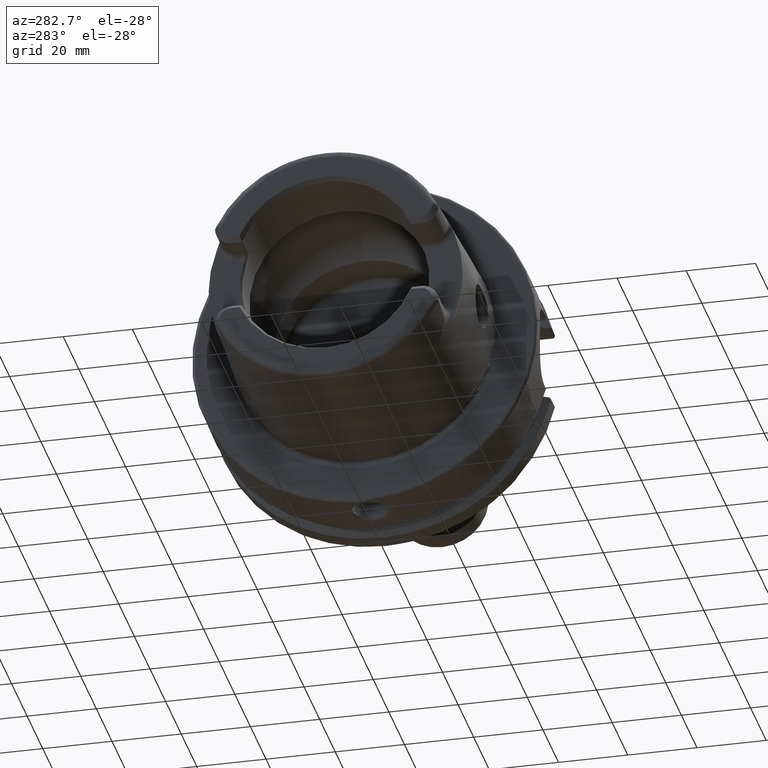
[diagram: clean part render]
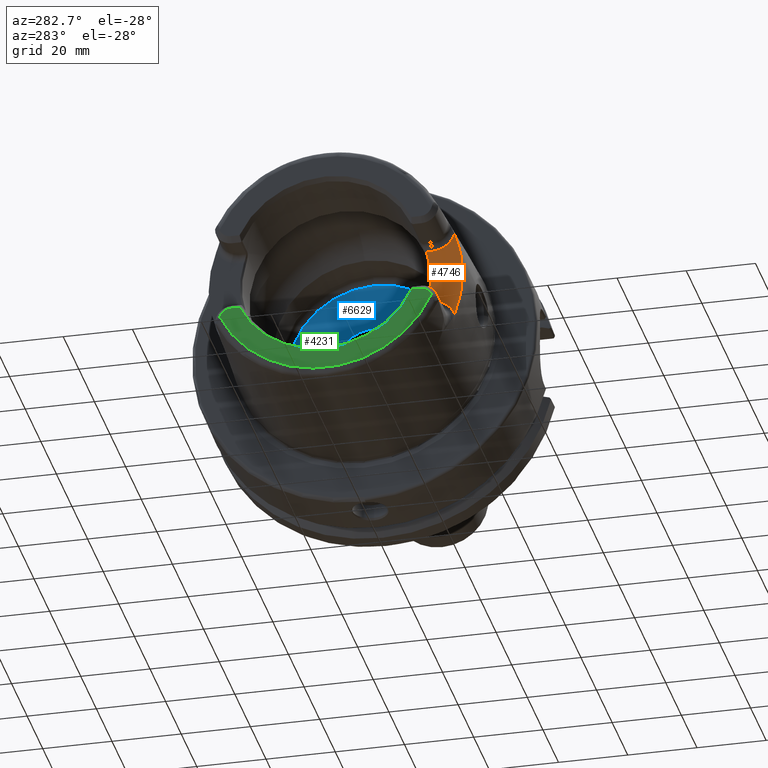
[diagram: same view with three faces highlighted in distinct colors, each labeled with its STEP entity id]
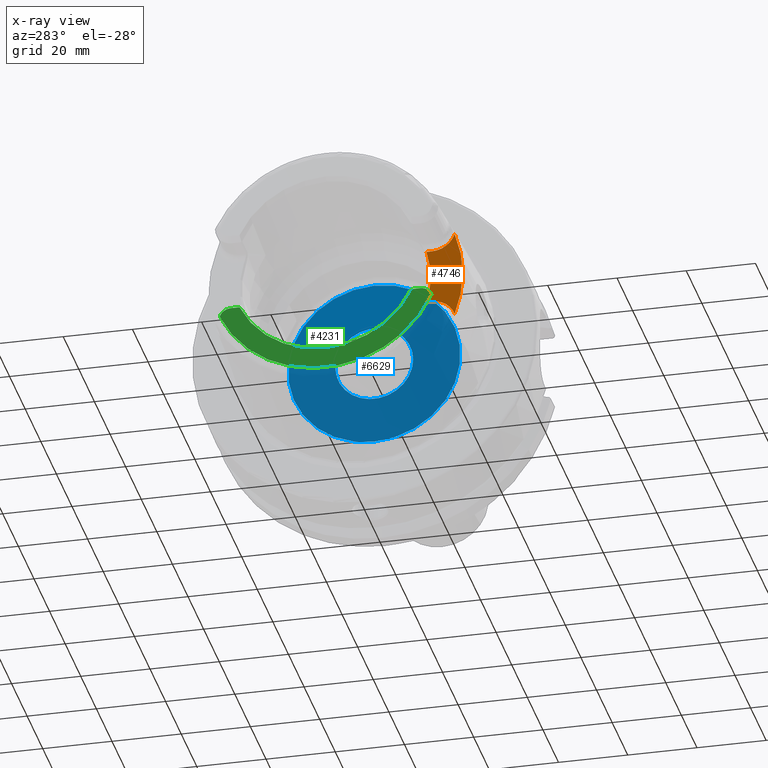
[diagram: x-ray of the same camera — body ghosted, the three highlighted faces saturated]
A machine part, auxiliary view with three faces highlighted in distinct colors.
The next image is the same camera in x-ray (body ghosted, the three faces saturated) — at least one of them is partly hidden behind the body in this view.
Their STEP definitions:

[orange] entity #4746 — the highlighted planar face has unit normal (1, 0, 0).
#610=CARTESIAN_POINT('',(-3.5E1,-3.391909039216E1,-1.278196417599E1));
#1115=CARTESIAN_POINT('',(-3.5E1,-3.002043058586E-13,-2.535749388244E-13));
#1116=DIRECTION('',(-1.E0,0.E0,0.E0));
#1117=DIRECTION('',(0.E0,-9.549810859508E-1,-2.966666908776E-1));
#1118=AXIS2_PLACEMENT_3D('',#1115,#1116,#1117);
#1120=CARTESIAN_POINT('',(-3.5E1,-2.737E1,1.489E1));
#1121=DIRECTION('',(-1.E0,0.E0,0.E0));
#1122=DIRECTION('',(0.E0,-3.385560565744E-10,-1.E0));
#1123=AXIS2_PLACEMENT_3D('',#1120,#1121,#1122);
#1125=CARTESIAN_POINT('',(-3.5E1,0.E0,0.E0));
#1126=DIRECTION('',(1.E0,0.E0,0.E0));
#1127=DIRECTION('',(0.E0,-9.357628524911E-1,3.526299532054E-1));
#1128=AXIS2_PLACEMENT_3D('',#1125,#1126,#1127);
#1130=CARTESIAN_POINT('',(-3.5E1,-2.737E1,-1.489E1));
#1131=DIRECTION('',(-1.E0,0.E0,0.E0));
#1132=DIRECTION('',(0.E0,-9.519026732788E-1,3.064005558166E-1));
#1133=AXIS2_PLACEMENT_3D('',#1130,#1131,#1132);
#1135=DIRECTION('',(1.158846828709E-9,9.999999999999E-1,-3.523374224471E-7));
#1136=VECTOR('',#1135,1.585510693194E0);
#1137=CARTESIAN_POINT('',(-3.5E1,-2.737000000155E1,-8.010000111748E0));
#1138=LINE('',#1137,#1136);
#1148=DIRECTION('',(1.409325401834E-9,9.999999999999E-1,5.349524788773E-7));
#1149=VECTOR('',#1148,1.585510756889E0);
#1150=CARTESIAN_POINT('',(-3.5E1,-2.737000000078E1,8.010000000082E0));
#1151=LINE('',#1150,#1149);
#3161=VERTEX_POINT('',#610);
#3162=CARTESIAN_POINT('',(-3.5E1,-3.391909039216E1,1.278196417598E1));
#3163=VERTEX_POINT('',#3162);
#3217=CARTESIAN_POINT('',(-3.5E1,-2.737000000233E1,8.01E0));
#3218=VERTEX_POINT('',#3217);
#3219=CARTESIAN_POINT('',(-3.5E1,-2.578448932067E1,-8.010000653695E0));
#3220=CARTESIAN_POINT('',(-3.5E1,-2.578448920776E1,8.010001017169E0));
#3221=VERTEX_POINT('',#3219);
#3222=VERTEX_POINT('',#3220);
#3223=CARTESIAN_POINT('',(-3.5E1,-2.737000000466E1,-8.01E0));
#3224=VERTEX_POINT('',#3223);
#4730=CARTESIAN_POINT('',(-3.5E1,0.E0,1.001E1));
#4731=DIRECTION('',(1.E0,0.E0,0.E0));
#4732=DIRECTION('',(0.E0,0.E0,-1.E0));
#4733=AXIS2_PLACEMENT_3D('',#4730,#4731,#4732);
#4734=PLANE('',#4733);
#4735=ORIENTED_EDGE('',*,*,#4328,.T.);
#4737=ORIENTED_EDGE('',*,*,#4736,.F.);
#4738=ORIENTED_EDGE('',*,*,#4720,.T.);
#4739=ORIENTED_EDGE('',*,*,#4161,.T.);
#4741=ORIENTED_EDGE('',*,*,#4740,.T.);
#4743=ORIENTED_EDGE('',*,*,#4742,.T.);
#4744=EDGE_LOOP('',(#4735,#4737,#4738,#4739,#4741,#4743));
#4745=FACE_OUTER_BOUND('',#4744,.F.);
#4746=ADVANCED_FACE('',(#4745),#4734,.F.);
#1119=CIRCLE('',#1118,2.7E1);
#1124=CIRCLE('',#1123,6.88E0);
#1129=CIRCLE('',#1128,3.624752820852E1);
#1134=CIRCLE('',#1133,6.88E0);
#4161=EDGE_CURVE('',#3163,#3161,#1129,.T.);
#4328=EDGE_CURVE('',#3221,#3222,#1119,.T.);
#4720=EDGE_CURVE('',#3218,#3163,#1124,.T.);
#4736=EDGE_CURVE('',#3218,#3222,#1151,.T.);
#4740=EDGE_CURVE('',#3161,#3224,#1134,.T.);
#4742=EDGE_CURVE('',#3224,#3221,#1138,.T.);

[blue] entity #6629 — the highlighted planar face has unit normal (1, 0, 0).
#2705=CARTESIAN_POINT('',(1.25E1,0.E0,0.E0));
#2706=DIRECTION('',(1.E0,0.E0,0.E0));
#2707=DIRECTION('',(0.E0,0.E0,1.E0));
#2708=AXIS2_PLACEMENT_3D('',#2705,#2706,#2707);
#2710=CARTESIAN_POINT('',(1.25E1,0.E0,0.E0));
#2711=DIRECTION('',(1.E0,0.E0,0.E0));
#2712=DIRECTION('',(0.E0,0.E0,-1.E0));
#2713=AXIS2_PLACEMENT_3D('',#2710,#2711,#2712);
#2715=CARTESIAN_POINT('',(1.25E1,0.E0,0.E0));
#2716=DIRECTION('',(-1.E0,0.E0,0.E0));
#2717=DIRECTION('',(0.E0,1.E0,0.E0));
#2718=AXIS2_PLACEMENT_3D('',#2715,#2716,#2717);
#2720=CARTESIAN_POINT('',(1.25E1,0.E0,0.E0));
#2721=DIRECTION('',(-1.E0,0.E0,0.E0));
#2722=DIRECTION('',(0.E0,-1.E0,0.E0));
#2723=AXIS2_PLACEMENT_3D('',#2720,#2721,#2722);
#3591=CARTESIAN_POINT('',(1.25E1,-1.125E1,0.E0));
#3592=VERTEX_POINT('',#3591);
#3593=CARTESIAN_POINT('',(1.25E1,1.125E1,0.E0));
#3594=VERTEX_POINT('',#3593);
#3595=CARTESIAN_POINT('',(1.25E1,0.E0,2.49E1));
#3596=CARTESIAN_POINT('',(1.25E1,0.E0,-2.49E1));
#3597=VERTEX_POINT('',#3595);
#3598=VERTEX_POINT('',#3596);
#6614=CARTESIAN_POINT('',(1.25E1,0.E0,0.E0));
#6615=DIRECTION('',(1.E0,0.E0,0.E0));
#6616=DIRECTION('',(0.E0,0.E0,1.E0));
#6617=AXIS2_PLACEMENT_3D('',#6614,#6615,#6616);
#6618=PLANE('',#6617);
#6620=ORIENTED_EDGE('',*,*,#6619,.T.);
#6622=ORIENTED_EDGE('',*,*,#6621,.T.);
#6623=EDGE_LOOP('',(#6620,#6622));
#6624=FACE_OUTER_BOUND('',#6623,.F.);
#6625=ORIENTED_EDGE('',*,*,#6594,.T.);
#6626=ORIENTED_EDGE('',*,*,#6608,.T.);
#6627=EDGE_LOOP('',(#6625,#6626));
#6628=FACE_BOUND('',#6627,.F.);
#6629=ADVANCED_FACE('',(#6624,#6628),#6618,.F.);
#2709=CIRCLE('',#2708,2.49E1);
#2714=CIRCLE('',#2713,2.49E1);
#2719=CIRCLE('',#2718,1.125E1);
#2724=CIRCLE('',#2723,1.125E1);
#6594=EDGE_CURVE('',#3594,#3592,#2719,.T.);
#6608=EDGE_CURVE('',#3592,#3594,#2724,.T.);
#6619=EDGE_CURVE('',#3597,#3598,#2709,.T.);
#6621=EDGE_CURVE('',#3598,#3597,#2714,.T.);

[green] entity #4231 — the highlighted planar face has unit normal (1, 0, 0).
#109=CARTESIAN_POINT('',(-5.E1,3.059420437527E1,-1.387564988959E1));
#283=CARTESIAN_POINT('',(-5.E1,2.482779181483E1,-1.151E1));
#786=DIRECTION('',(3.074480736451E-14,-1.E0,3.577577584234E-13));
#787=VECTOR('',#786,2.542208185172E0);
#788=CARTESIAN_POINT('',(-5.E1,2.737E1,-1.151E1));
#789=LINE('',#788,#787);
#790=CARTESIAN_POINT('',(-5.E1,3.375077994860E-14,1.625366508051E-13));
#791=DIRECTION('',(-1.E0,0.E0,0.E0));
#792=DIRECTION('',(0.E0,9.072487308075E-1,-4.205945083428E-1));
#793=AXIS2_PLACEMENT_3D('',#790,#791,#792);
#795=CARTESIAN_POINT('',(-5.E1,3.375077994860E-14,1.625366508051E-13));
#796=DIRECTION('',(-1.E0,0.E0,0.E0));
#797=DIRECTION('',(0.E0,0.E0,-1.E0));
#798=AXIS2_PLACEMENT_3D('',#795,#796,#797);
#800=CARTESIAN_POINT('',(-5.E1,-2.737E1,-1.489E1));
#801=DIRECTION('',(1.E0,0.E0,0.E0));
#802=DIRECTION('',(0.E0,1.681757954462E-14,1.E0));
#803=AXIS2_PLACEMENT_3D('',#800,#801,#802);
#805=CARTESIAN_POINT('',(-5.E1,0.E0,0.E0));
#806=DIRECTION('',(1.E0,0.E0,0.E0));
#807=DIRECTION('',(0.E0,-9.107116187708E-1,-4.130427912891E-1));
#808=AXIS2_PLACEMENT_3D('',#805,#806,#807);
#810=CARTESIAN_POINT('',(-5.E1,2.737E1,-1.489E1));
#811=DIRECTION('',(1.E0,0.E0,0.E0));
#812=DIRECTION('',(0.E0,9.539066199006E-1,3.001035829673E-1));
#813=AXIS2_PLACEMENT_3D('',#810,#811,#812);
#815=DIRECTION('',(3.074480736451E-14,1.E0,3.633477233988E-13));
#816=VECTOR('',#815,2.542208185172E0);
#817=CARTESIAN_POINT('',(-5.E1,-2.737E1,-1.151E1));
#818=LINE('',#817,#816);
#3058=VERTEX_POINT('',#109);
#3059=CARTESIAN_POINT('',(-5.E1,-3.059420437526E1,-1.387564988957E1));
#3060=VERTEX_POINT('',#3059);
#3064=CARTESIAN_POINT('',(-5.E1,2.737E1,-1.151E1));
#3066=VERTEX_POINT('',#3064);
#3071=VERTEX_POINT('',#283);
#3174=CARTESIAN_POINT('',(-5.E1,-2.737E1,-1.151E1));
#3175=VERTEX_POINT('',#3174);
#3190=CARTESIAN_POINT('',(-5.E1,2.842170943040E-14,-2.736602540378E1));
#3191=CARTESIAN_POINT('',(-5.E1,-2.482779181483E1,-1.151E1));
#3192=VERTEX_POINT('',#3190);
#3193=VERTEX_POINT('',#3191);
#4216=CARTESIAN_POINT('',(-5.E1,0.E0,0.E0));
#4217=DIRECTION('',(1.E0,0.E0,0.E0));
#4218=DIRECTION('',(0.E0,0.E0,1.E0));
#4219=AXIS2_PLACEMENT_3D('',#4216,#4217,#4218);
#4220=PLANE('',#4219);
#4221=ORIENTED_EDGE('',*,*,#3693,.T.);
#4222=ORIENTED_EDGE('',*,*,#3826,.T.);
#4223=ORIENTED_EDGE('',*,*,#3824,.T.);
#4225=ORIENTED_EDGE('',*,*,#4224,.F.);
#4226=ORIENTED_EDGE('',*,*,#4207,.T.);
#4227=ORIENTED_EDGE('',*,*,#3652,.T.);
#4228=ORIENTED_EDGE('',*,*,#3673,.T.);
#4229=EDGE_LOOP('',(#4221,#4222,#4223,#4225,#4226,#4227,#4228));
#4230=FACE_OUTER_BOUND('',#4229,.F.);
#4231=ADVANCED_FACE('',(#4230),#4220,.F.);
#794=CIRCLE('',#793,2.736602540378E1);
#799=CIRCLE('',#798,2.736602540378E1);
#804=CIRCLE('',#803,3.38E0);
#809=CIRCLE('',#808,3.359373455294E1);
#814=CIRCLE('',#813,3.38E0);
#3652=EDGE_CURVE('',#3060,#3058,#809,.T.);
#3673=EDGE_CURVE('',#3058,#3066,#814,.T.);
#3693=EDGE_CURVE('',#3066,#3071,#789,.T.);
#3824=EDGE_CURVE('',#3192,#3193,#799,.T.);
#3826=EDGE_CURVE('',#3071,#3192,#794,.T.);
#4207=EDGE_CURVE('',#3175,#3060,#804,.T.);
#4224=EDGE_CURVE('',#3175,#3193,#818,.T.);